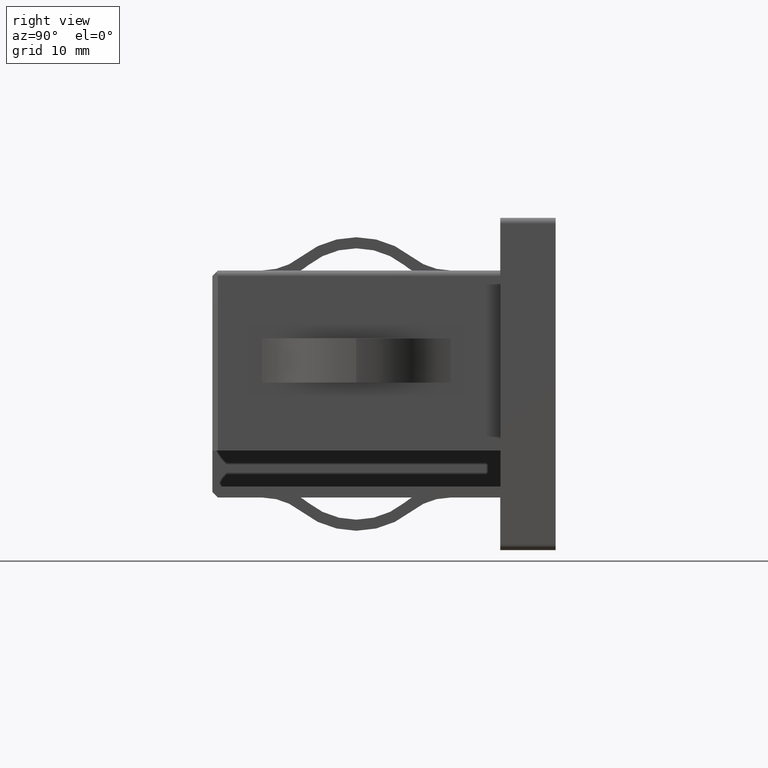
[diagram: clean part render]
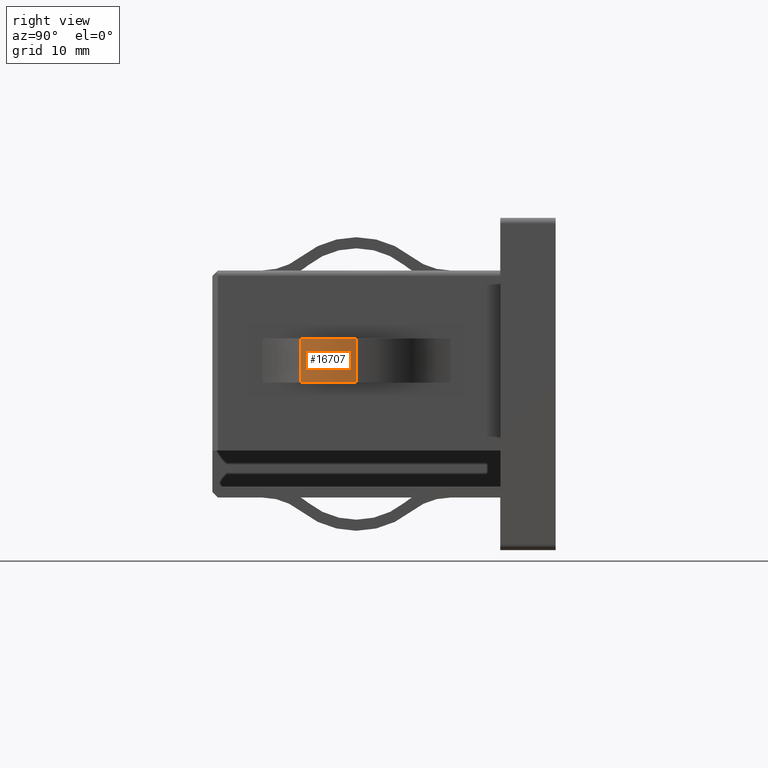
[diagram: same view with one face highlighted and labeled with its STEP entity id]
A machine part, right view. The second image highlights one B-rep face of the part: STEP entity #16707.
In plain terms, the highlighted cylindrical surface (partial cylindrical patch) has radius 7.9657 mm, axis along (-0, -0, 1).
Its self-contained STEP definition (entity closure, byte-faithful):
#594 = EDGE_CURVE ( 'NONE', #2183, #5616, #11749, .T. ) ;
#1981 = DIRECTION ( 'NONE',  ( -1.000000000000000000, 1.742196143248408400E-015, 0.0000000000000000000 ) ) ;
#2183 = VERTEX_POINT ( 'NONE', #6517 ) ;
#2616 = CARTESIAN_POINT ( 'NONE',  ( 23.24999999999579000, -13.00000000000000200, 4.124999999999989300 ) ) ;
#2991 = DIRECTION ( 'NONE',  ( -1.000000000000000000, 1.742196143248408400E-015, 0.0000000000000000000 ) ) ;
#3326 = CARTESIAN_POINT ( 'NONE',  ( 15.28431378171576700, -13.00000000000000200, 0.1249999999999888400 ) ) ;
#4397 = DIRECTION ( 'NONE',  ( 1.000000000000000000, 0.0000000000000000000, 0.0000000000000000000 ) ) ;
#4436 = ORIENTED_EDGE ( 'NONE', *, *, #594, .T. ) ;
#4584 = DIRECTION ( 'NONE',  ( -0.0000000000000000000, -0.0000000000000000000, 1.000000000000000000 ) ) ;
#4636 = CARTESIAN_POINT ( 'NONE',  ( 23.24999999999579000, -13.00000000000000200, 0.1249999999999888400 ) ) ;
#5086 = LINE ( 'NONE', #4636, #5772 ) ;
#5527 = AXIS2_PLACEMENT_3D ( 'NONE', #11487, #15721, #4397 ) ;
#5616 = VERTEX_POINT ( 'NONE', #16004 ) ;
#5772 = VECTOR ( 'NONE', #14479, 1000.000000000000000 ) ;
#6517 = CARTESIAN_POINT ( 'NONE',  ( 21.48529410164039500, -18.00000000000037700, 0.1249999999999888400 ) ) ;
#6559 = EDGE_CURVE ( 'NONE', #5616, #10440, #5086, .T. ) ;
#7419 = EDGE_LOOP ( 'NONE', ( #4436, #16207, #13379, #17672 ) ) ;
#7950 = VECTOR ( 'NONE', #11314, 1000.000000000000000 ) ;
#8062 = EDGE_CURVE ( 'NONE', #2183, #9271, #10796, .T. ) ;
#8606 = CARTESIAN_POINT ( 'NONE',  ( 21.48529410164039500, -18.00000000000037700, 0.1249999999999888400 ) ) ;
#9271 = VERTEX_POINT ( 'NONE', #9904 ) ;
#9904 = CARTESIAN_POINT ( 'NONE',  ( 21.48529410164039500, -18.00000000000037700, 4.124999999999989300 ) ) ;
#10440 = VERTEX_POINT ( 'NONE', #2616 ) ;
#10796 = LINE ( 'NONE', #8606, #7950 ) ;
#11314 = DIRECTION ( 'NONE',  ( -0.0000000000000000000, -0.0000000000000000000, 1.000000000000000000 ) ) ;
#11487 = CARTESIAN_POINT ( 'NONE',  ( 15.28431378171576700, -13.00000000000000200, 0.1249999999999888400 ) ) ;
#11540 = CARTESIAN_POINT ( 'NONE',  ( 15.28431378171576700, -13.00000000000000200, 4.124999999999989300 ) ) ;
#11749 = CIRCLE ( 'NONE', #17198, 7.965686218280024100 ) ;
#12059 = CYLINDRICAL_SURFACE ( 'NONE', #5527, 7.965686218280024100 ) ;
#13161 = DIRECTION ( 'NONE',  ( -0.0000000000000000000, -0.0000000000000000000, 1.000000000000000000 ) ) ;
#13355 = CIRCLE ( 'NONE', #16141, 7.965686218280024100 ) ;
#13379 = ORIENTED_EDGE ( 'NONE', *, *, #17428, .F. ) ;
#14479 = DIRECTION ( 'NONE',  ( -0.0000000000000000000, -0.0000000000000000000, 1.000000000000000000 ) ) ;
#15721 = DIRECTION ( 'NONE',  ( -0.0000000000000000000, -0.0000000000000000000, 1.000000000000000000 ) ) ;
#16004 = CARTESIAN_POINT ( 'NONE',  ( 23.24999999999579000, -13.00000000000000200, 0.1249999999999888400 ) ) ;
#16016 = FACE_OUTER_BOUND ( 'NONE', #7419, .T. ) ;
#16141 = AXIS2_PLACEMENT_3D ( 'NONE', #11540, #4584, #2991 ) ;
#16207 = ORIENTED_EDGE ( 'NONE', *, *, #6559, .T. ) ;
#16707 = ADVANCED_FACE ( 'NONE', ( #16016 ), #12059, .T. ) ;
#17198 = AXIS2_PLACEMENT_3D ( 'NONE', #3326, #13161, #1981 ) ;
#17428 = EDGE_CURVE ( 'NONE', #9271, #10440, #13355, .T. ) ;
#17672 = ORIENTED_EDGE ( 'NONE', *, *, #8062, .F. ) ;